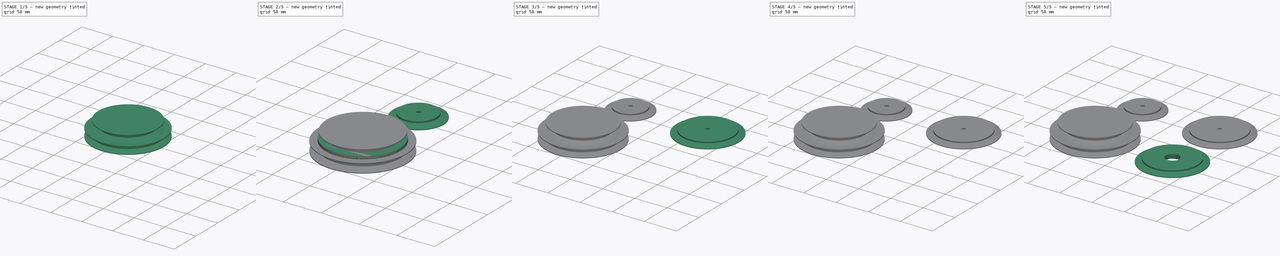
[diagram: build sequence overview — one tinted view per stage of 5, left to right]
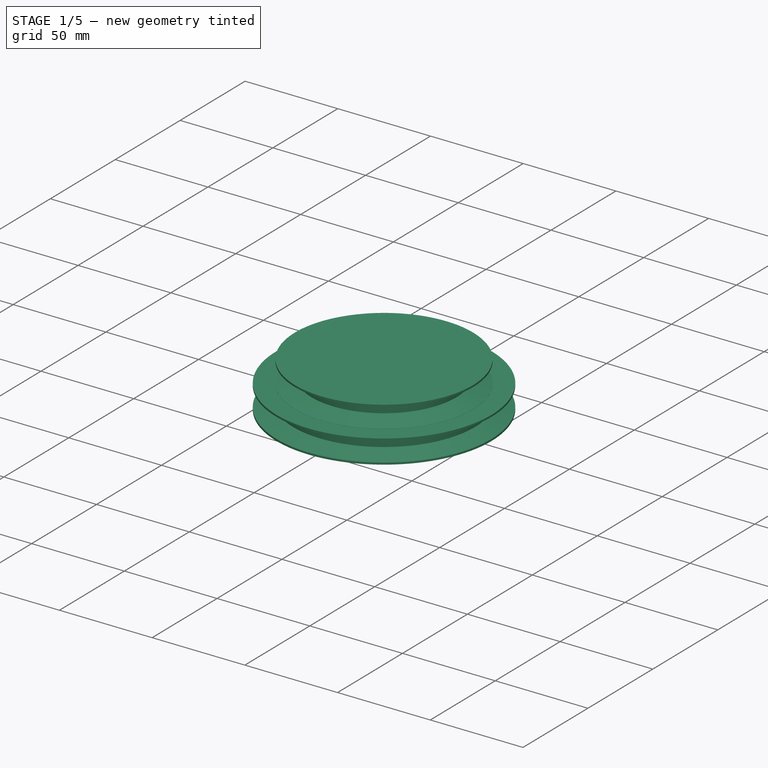
[diagram: stage 1 of 5 — iso view after this stage's code; geometry added in this stage tinted green]
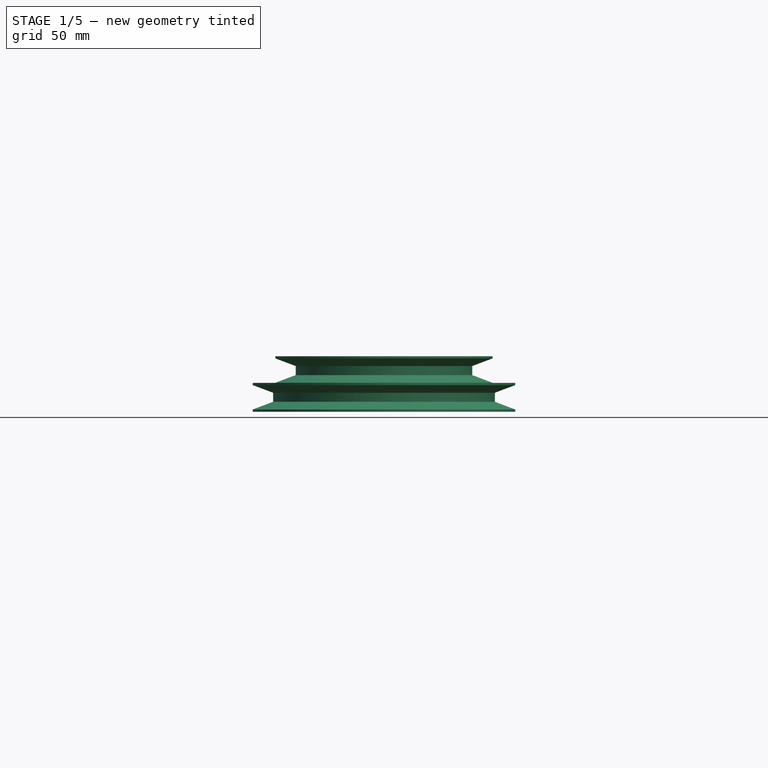
[diagram: stage 1 of 5 — front view after this stage's code; geometry added in this stage tinted green]
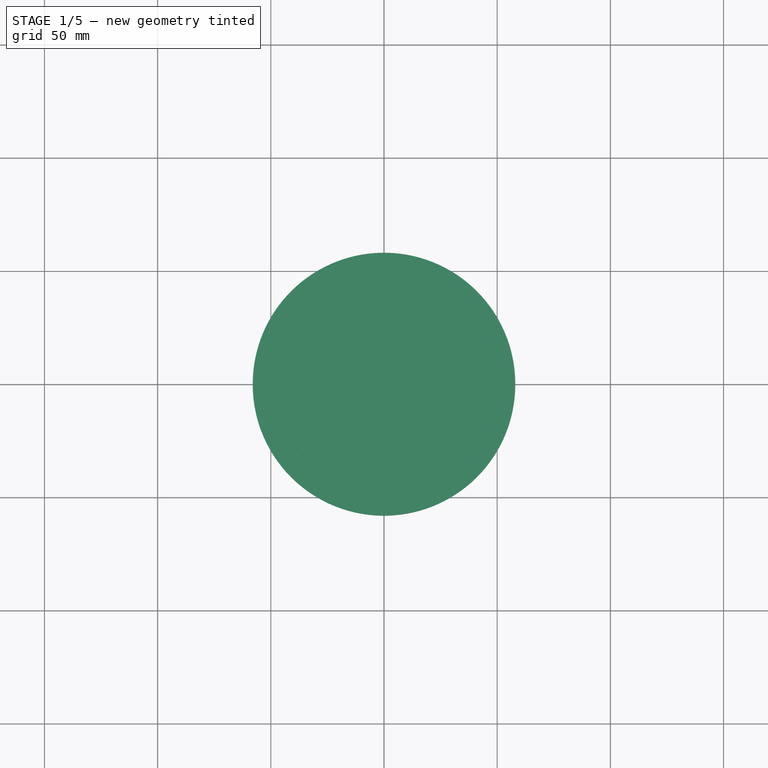
[diagram: stage 1 of 5 — top view after this stage's code; geometry added in this stage tinted green]
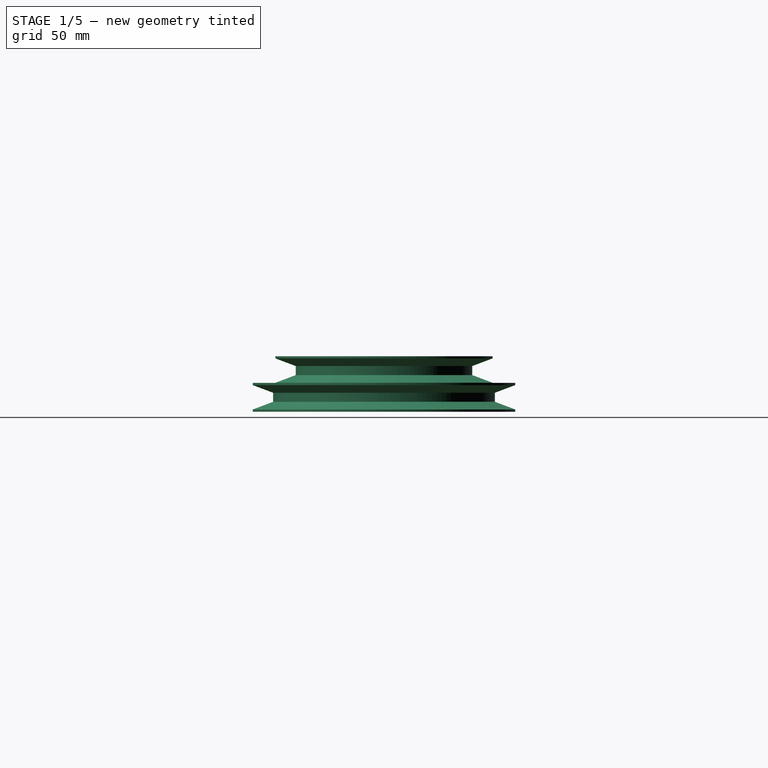
[diagram: stage 1 of 5 — right view after this stage's code; geometry added in this stage tinted green]
FCSTD DOCUMENT  (FreeCAD 0.17RUnknown)
Label: pulley
License: All rights reserved
LicenseURL: http://en.wikipedia.org/wiki/All_rights_reserved
objects: Part::Cylinder×12, Part::Cut×11, Sketcher::SketchObject×8, Part::Revolution×8, Part::Box×3, Part::MultiFuse×2, App::DocumentObjectGroup×1
note: 44 computed .brp shape members not serialized (recipe doc carries the construction recipe); baked Part::Feature solids carry a one-line shape summary decoded from their .brp

FEATURE [Sketcher::SketchObject] Sketch  label="r25mm"
  Placement = pos=(0,0,0) rot=(1,0,0;1.5708rad)
  sketch-geometry (8):
    g0: LineSegment StartX=-8 StartY=5.38155 StartZ=0 EndX=1 EndY=2 EndZ=0
    g1: LineSegment StartX=-8 StartY=-5.3979 StartZ=0 EndX=1 EndY=-2 EndZ=0
    g2: LineSegment StartX=1 StartY=-2 StartZ=0 EndX=1 EndY=2 EndZ=0
    g3: LineSegment StartX=-8 StartY=6.33661 StartZ=0 EndX=24.9919 EndY=6.33661 EndZ=0
    g4: LineSegment StartX=-8 StartY=-6.40963 StartZ=0 EndX=24.9919 EndY=-6.40963 EndZ=0
    g5: LineSegment StartX=24.9919 StartY=-6.40963 StartZ=0 EndX=24.9919 EndY=6.33661 EndZ=0
    g6: LineSegment StartX=-8 StartY=-5.3979 StartZ=0 EndX=-8 EndY=-6.40963 EndZ=0
    g7: LineSegment StartX=-8 StartY=5.38155 StartZ=0 EndX=-8 EndY=6.33661 EndZ=0
  constraints (13):
    c: Coincident(g2,g0)
    c: Vertical(g2)
    c: Horizontal(g3)
    c: Horizontal(g4)
    c: Coincident(g5,g4)
    c: Coincident(g5,g3)
    c: Vertical(g5)
    c: Coincident(g6,g1)
    c: Coincident(g6,g4)
    c: Vertical(g6)
    c: Coincident(g7,g0)
    c: Coincident(g7,g3)
    c: Vertical(g7)
FEATURE [Sketcher::SketchObject] Sketch001  label="r40mm"
  Placement = pos=(0,0,0) rot=(1,0,0;1.5708rad)
  sketch-geometry (8):
    g0: LineSegment StartX=-8 StartY=5.38155 StartZ=0 EndX=1 EndY=2 EndZ=0
    g1: LineSegment StartX=-8 StartY=-5.3979 StartZ=0 EndX=1 EndY=-2 EndZ=0
    g2: LineSegment StartX=1 StartY=-2 StartZ=0 EndX=1 EndY=2 EndZ=0
    g3: LineSegment StartX=-8 StartY=6.33661 StartZ=0 EndX=40 EndY=6.33661 EndZ=0
    g4: LineSegment StartX=-8 StartY=-6.40963 StartZ=0 EndX=40 EndY=-6.40963 EndZ=0
    g5: LineSegment StartX=40 StartY=-6.40963 StartZ=0 EndX=40 EndY=6.33661 EndZ=0
    g6: LineSegment StartX=-8 StartY=-5.3979 StartZ=0 EndX=-8 EndY=-6.40963 EndZ=0
    g7: LineSegment StartX=-8 StartY=5.38155 StartZ=0 EndX=-8 EndY=6.33661 EndZ=0
  constraints (13):
    c: Coincident(g2,g0)
    c: Vertical(g2)
    c: Horizontal(g3)
    c: Horizontal(g4)
    c: Coincident(g5,g4)
    c: Coincident(g5,g3)
    c: Vertical(g5)
    c: Coincident(g6,g1)
    c: Coincident(g6,g4)
    c: Vertical(g6)
    c: Coincident(g7,g0)
    c: Coincident(g7,g3)
    c: Vertical(g7)
FEATURE [Sketcher::SketchObject] Sketch002  label="r50mm"
  Placement = pos=(0,0,0) rot=(1,0,0;1.5708rad)
  sketch-geometry (8):
    g0: LineSegment StartX=-8 StartY=5.38155 StartZ=0 EndX=1 EndY=2 EndZ=0
    g1: LineSegment StartX=-8 StartY=-5.3979 StartZ=0 EndX=1 EndY=-2 EndZ=0
    g2: LineSegment StartX=1 StartY=-2 StartZ=0 EndX=1 EndY=2 EndZ=0
    g3: LineSegment StartX=-8 StartY=6.33661 StartZ=0 EndX=50 EndY=6.33661 EndZ=0
    g4: LineSegment StartX=-8 StartY=-6.40963 StartZ=0 EndX=50 EndY=-6.40963 EndZ=0
    g5: LineSegment StartX=50 StartY=-6.40963 StartZ=0 EndX=50 EndY=6.33661 EndZ=0
    g6: LineSegment StartX=-8 StartY=-5.3979 StartZ=0 EndX=-8 EndY=-6.40963 EndZ=0
    g7: LineSegment StartX=-8 StartY=5.38155 StartZ=0 EndX=-8 EndY=6.33661 EndZ=0
  constraints (13):
    c: Coincident(g2,g0)
    c: Vertical(g2)
    c: Horizontal(g3)
    c: Horizontal(g4)
    c: Coincident(g5,g4)
    c: Coincident(g5,g3)
    c: Vertical(g5)
    c: Coincident(g6,g1)
    c: Coincident(g6,g4)
    c: Vertical(g6)
    c: Coincident(g7,g0)
    c: Coincident(g7,g3)
    c: Vertical(g7)
FEATURE [Part::Revolution] Revolve
  Angle = 360
  Axis = (0,0,1)
  AxisLink = -> Sketch [Edge6]
  Base = (24.9919,0,6.33661)
  FaceMakerClass = Part::FaceMakerBullseye
  Placement = pos=(-25,0,11.8) rot=(0,0,1;0rad)
  Solid = true
  Source = -> Sketch
  Symmetric = false
FEATURE [Part::Revolution] Revolve002
  Angle = 360
  Axis = (0,0,1)
  AxisLink = -> Sketch001 [Edge6]
  Base = (40,0,6.33661)
  FaceMakerClass = Part::FaceMakerBullseye
  Placement = pos=(-40,0,11.8) rot=(0,0,1;0rad)
  Solid = true
  Source = -> Sketch001
  Symmetric = false
FEATURE [Sketcher::SketchObject] Sketch003  label="r40mm001"
  Placement = pos=(0,0,0) rot=(1,0,0;1.5708rad)
  sketch-geometry (8):
    g0: LineSegment StartX=-8 StartY=5.38155 StartZ=0 EndX=1 EndY=2 EndZ=0
    g1: LineSegment StartX=-8 StartY=-5.3979 StartZ=0 EndX=1 EndY=-2 EndZ=0
    g2: LineSegment StartX=1 StartY=-2 StartZ=0 EndX=1 EndY=2 EndZ=0
    g3: LineSegment StartX=-8 StartY=6.33661 StartZ=0 EndX=40 EndY=6.33661 EndZ=0
    g4: LineSegment StartX=-8 StartY=-6.40963 StartZ=0 EndX=40 EndY=-6.40963 EndZ=0
    g5: LineSegment StartX=40 StartY=-6.40963 StartZ=0 EndX=40 EndY=6.33661 EndZ=0
    g6: LineSegment StartX=-8 StartY=-5.3979 StartZ=0 EndX=-8 EndY=-6.40963 EndZ=0
    g7: LineSegment StartX=-8 StartY=5.38155 StartZ=0 EndX=-8 EndY=6.33661 EndZ=0
  constraints (13):
    c: Coincident(g2,g0)
    c: Vertical(g2)
    c: Horizontal(g3)
    c: Horizontal(g4)
    c: Coincident(g5,g4)
    c: Coincident(g5,g3)
    c: Vertical(g5)
    c: Coincident(g6,g1)
    c: Coincident(g6,g4)
    c: Vertical(g6)
    c: Coincident(g7,g0)
    c: Coincident(g7,g3)
    c: Vertical(g7)
FEATURE [Part::Revolution] Revolve003
  Angle = 360
  Axis = (0,0,1)
  AxisLink = -> Sketch003 [Edge6]
  Base = (40,0,6.33661)
  FaceMakerClass = Part::FaceMakerBullseye
  Placement = pos=(-40,0,0) rot=(0,0,1;0rad)
  Solid = true
  Source = -> Sketch003
  Symmetric = false
FEATURE [Part::Revolution] Revolve004
  Angle = 360
  Axis = (0,0,1)
  AxisLink = -> Sketch002 [Edge6]
  Base = (50,0,6.33661)
  FaceMakerClass = Part::FaceMakerBullseye
  Placement = pos=(-50,0,0) rot=(0,0,1;0rad)
  Solid = true
  Source = -> Sketch002
  Symmetric = false
FEATURE [Sketcher::SketchObject] Sketch007  label="r25mm001"
  Placement = pos=(0,0,0) rot=(1,0,0;1.5708rad)
  sketch-geometry (8):
    g0: LineSegment StartX=-8 StartY=5.38155 StartZ=0 EndX=1 EndY=2 EndZ=0
    g1: LineSegment StartX=-8 StartY=-5.3979 StartZ=0 EndX=1 EndY=-2 EndZ=0
    g2: LineSegment StartX=1 StartY=-2 StartZ=0 EndX=1 EndY=2 EndZ=0
    g3: LineSegment StartX=-8 StartY=6.33661 StartZ=0 EndX=24.9919 EndY=6.33661 EndZ=0
    g4: LineSegment StartX=-8 StartY=-6.40963 StartZ=0 EndX=24.9919 EndY=-6.40963 EndZ=0
    g5: LineSegment StartX=24.9919 StartY=-6.40963 StartZ=0 EndX=24.9919 EndY=6.33661 EndZ=0
    g6: LineSegment StartX=-8 StartY=-5.3979 StartZ=0 EndX=-8 EndY=-6.40963 EndZ=0
    g7: LineSegment StartX=-8 StartY=5.38155 StartZ=0 EndX=-8 EndY=6.33661 EndZ=0
  constraints (13):
    c: Coincident(g2,g0)
    c: Vertical(g2)
    c: Horizontal(g3)
    c: Horizontal(g4)
    c: Coincident(g5,g4)
    c: Coincident(g5,g3)
    c: Vertical(g5)
    c: Coincident(g6,g1)
    c: Coincident(g6,g4)
    c: Vertical(g6)
    c: Coincident(g7,g0)
    c: Coincident(g7,g3)
    c: Vertical(g7)
FEATURE [Part::Revolution] Revolve009
  Angle = 360
  Axis = (0,0,1)
  AxisLink = -> Sketch007 [Edge6]
  Base = (24.9919,0,6.33661)
  FaceMakerClass = Part::FaceMakerBullseye
  Placement = pos=(-25,0,0) rot=(0,0,1;0rad)
  Solid = true
  Source = -> Sketch007
  Symmetric = false
FEATURE [Part::Cylinder] Cylinder011  label="Zylinder011"
  Angle = 360
  AttacherType = Attacher::AttachEngine3D
  Height = 10
  Placement = pos=(0,0,0.2) rot=(0,0,1;0rad)
  Radius = 35
FEATURE [Part::Cut] Cut010
  Base = -> Revolve009
  Tool = -> Cylinder011
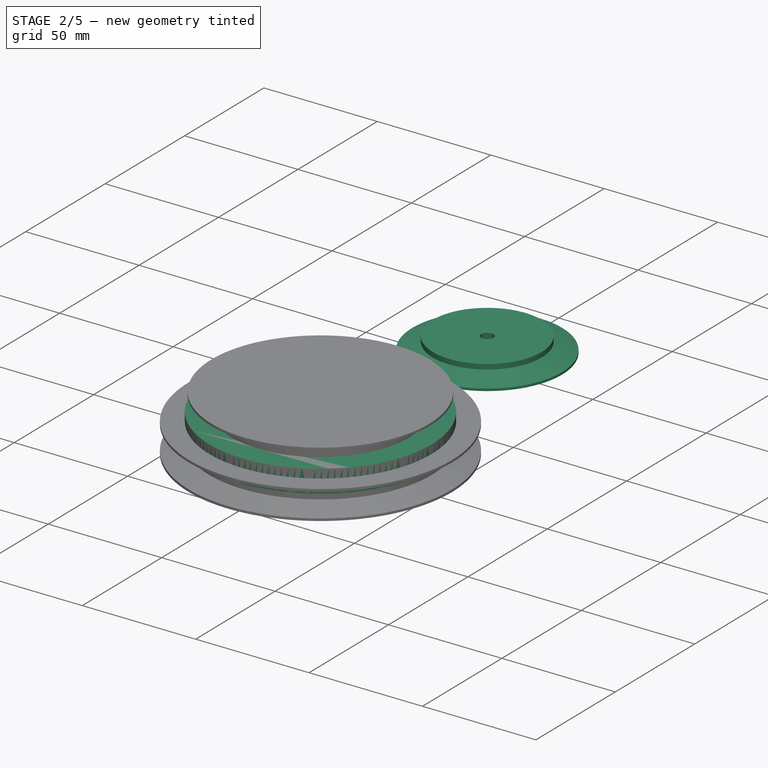
[diagram: stage 2 of 5 — iso view after this stage's code; geometry added in this stage tinted green]
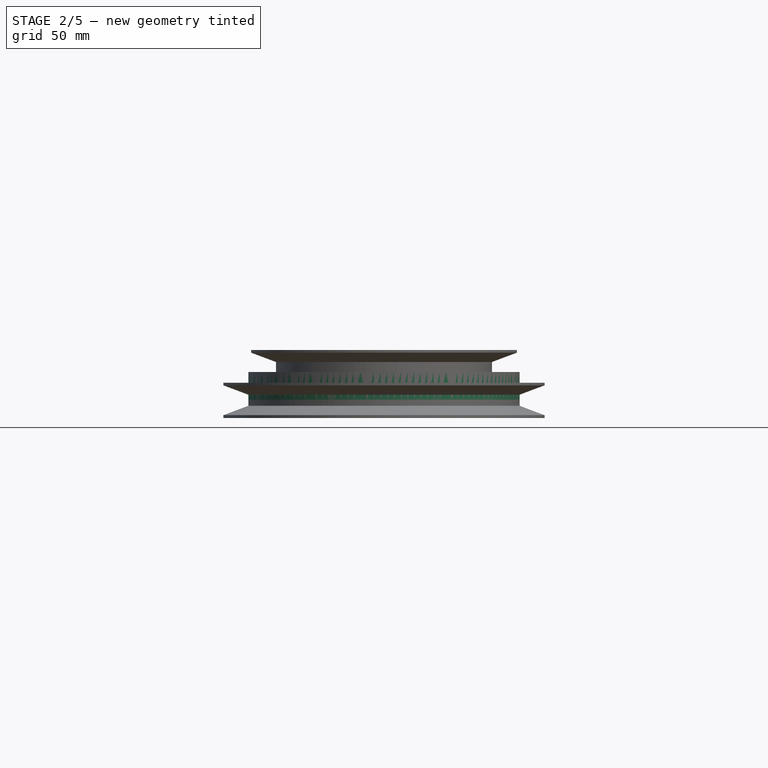
[diagram: stage 2 of 5 — front view after this stage's code; geometry added in this stage tinted green]
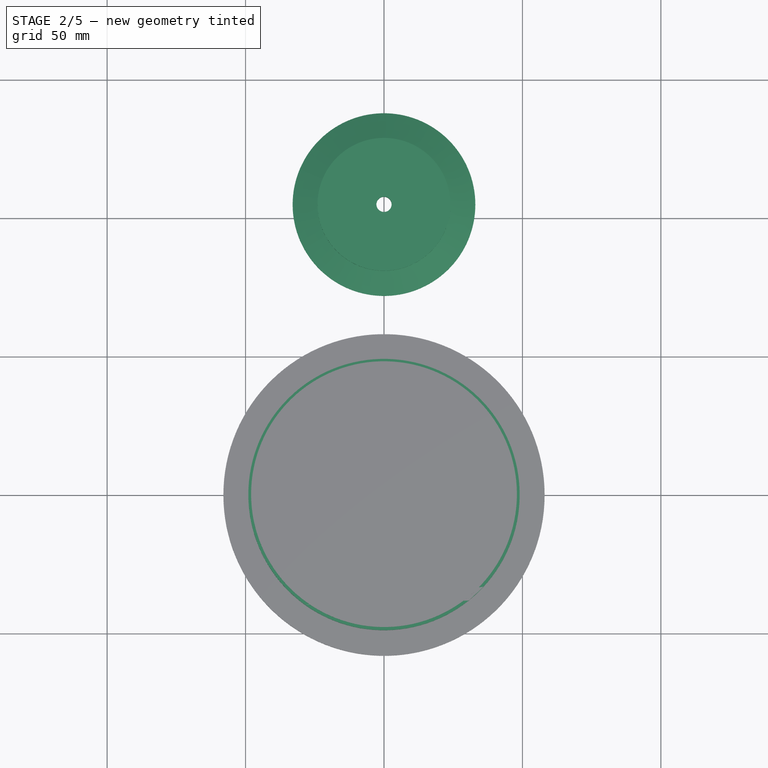
[diagram: stage 2 of 5 — top view after this stage's code; geometry added in this stage tinted green]
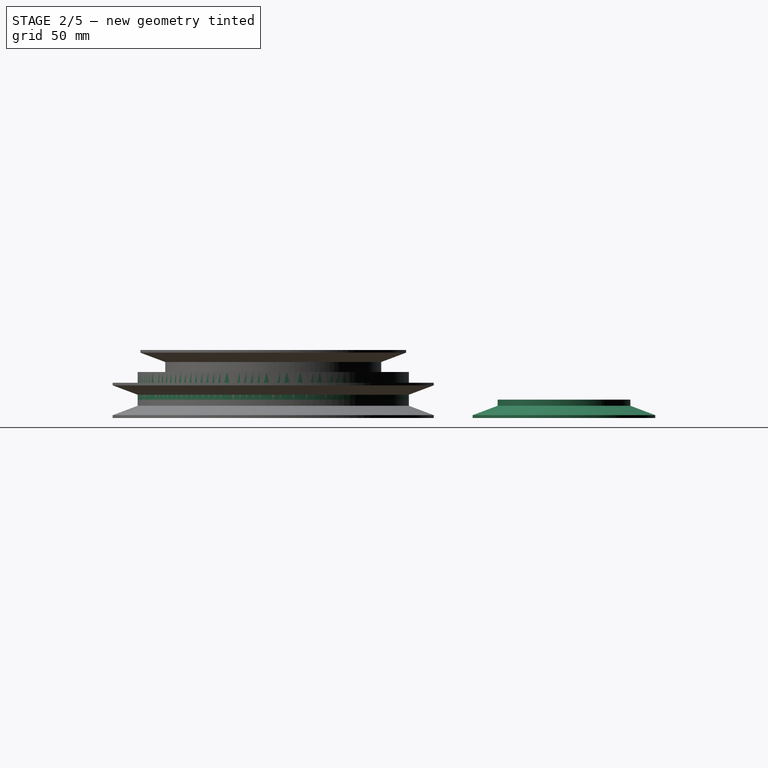
[diagram: stage 2 of 5 — right view after this stage's code; geometry added in this stage tinted green]
FEATURE [Sketcher::SketchObject] Sketch006  label="r40mm003"
  Placement = pos=(0,0,0) rot=(1,0,0;1.5708rad)
  sketch-geometry (8):
    g0: LineSegment StartX=-8 StartY=5.38155 StartZ=0 EndX=1 EndY=2 EndZ=0
    g1: LineSegment StartX=-8 StartY=-5.3979 StartZ=0 EndX=1 EndY=-2 EndZ=0
    g2: LineSegment StartX=1 StartY=-2 StartZ=0 EndX=1 EndY=2 EndZ=0
    g3: LineSegment StartX=-8 StartY=6.33661 StartZ=0 EndX=40 EndY=6.33661 EndZ=0
    g4: LineSegment StartX=-8 StartY=-6.40963 StartZ=0 EndX=40 EndY=-6.40963 EndZ=0
    g5: LineSegment StartX=40 StartY=-6.40963 StartZ=0 EndX=40 EndY=6.33661 EndZ=0
    g6: LineSegment StartX=-8 StartY=-5.3979 StartZ=0 EndX=-8 EndY=-6.40963 EndZ=0
    g7: LineSegment StartX=-8 StartY=5.38155 StartZ=0 EndX=-8 EndY=6.33661 EndZ=0
  constraints (13):
    c: Coincident(g2,g0)
    c: Vertical(g2)
    c: Horizontal(g3)
    c: Horizontal(g4)
    c: Coincident(g5,g4)
    c: Coincident(g5,g3)
    c: Vertical(g5)
    c: Coincident(g6,g1)
    c: Coincident(g6,g4)
    c: Vertical(g6)
    c: Coincident(g7,g0)
    c: Coincident(g7,g3)
    c: Vertical(g7)
FEATURE [Part::Revolution] Revolve008
  Angle = 360
  Axis = (0,0,1)
  AxisLink = -> Sketch006 [Edge6]
  Base = (40,0,6.33661)
  FaceMakerClass = Part::FaceMakerBullseye
  Placement = pos=(-40,0,0) rot=(0,0,1;0rad)
  Solid = true
  Source = -> Sketch006
  Symmetric = false
FEATURE [Part::Cylinder] Cylinder008  label="Zylinder008"
  Angle = 360
  AttacherType = Attacher::AttachEngine3D
  Height = 10
  Placement = pos=(0,0,0.2) rot=(0,0,1;0rad)
  Radius = 49
FEATURE [Part::Cylinder] Cylinder009  label="Zylinder009"
  Angle = 360
  AttacherType = Attacher::AttachEngine3D
  Height = 20
  Placement = pos=(0,0,-10) rot=(0,0,1;0rad)
  Radius = 2.75
FEATURE [Part::Cylinder] Cylinder010  label="Zylinder010"
  Angle = 360
  AttacherType = Attacher::AttachEngine3D
  Height = 2
  Placement = pos=(0,0,0.2) rot=(0,0,1;0rad)
  Radius = 32.5
FEATURE [Part::Cut] Cut009  label="Dist_25mm"
  Base = -> Cylinder010
  Tool = -> Cylinder009
FEATURE [Part::Cylinder] Cylinder012  label="Zylinder012"
  Angle = 360
  AttacherType = Attacher::AttachEngine3D
  Height = 10
  Placement = pos=(0,0,-7.8) rot=(0,0,1;0rad)
  Radius = 2.75
FEATURE [Part::Cut] Cut011  label="25mm_half"
  Base = -> Cut010
  Placement = pos=(0,105,0) rot=(0,0,1;0rad)
  Tool = -> Cylinder012
FEATURE [App::DocumentObjectGroup] Gruppe
  Group = -> [Revolve,Revolve003,Revolve002,Revolve004]
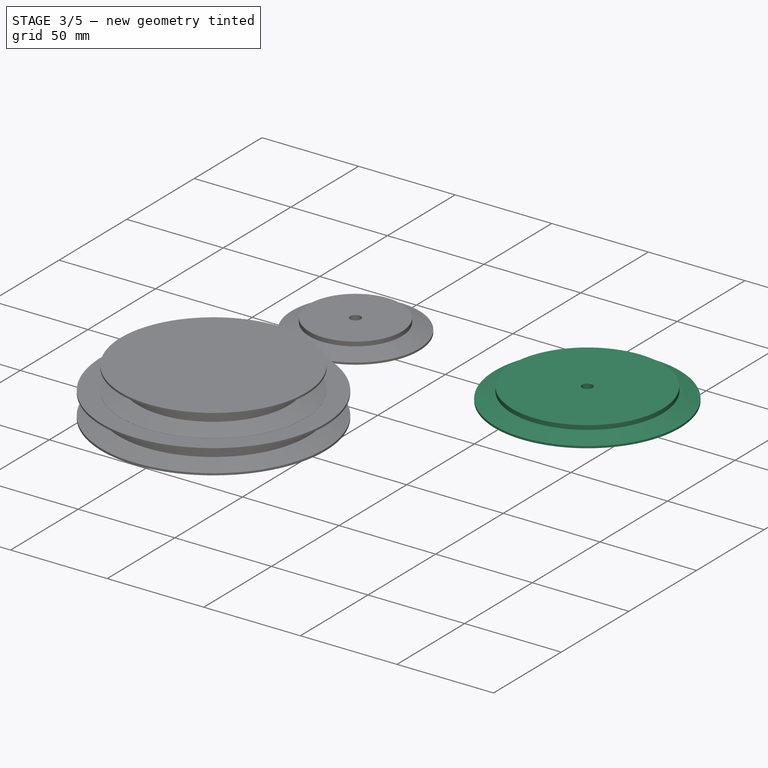
[diagram: stage 3 of 5 — iso view after this stage's code; geometry added in this stage tinted green]
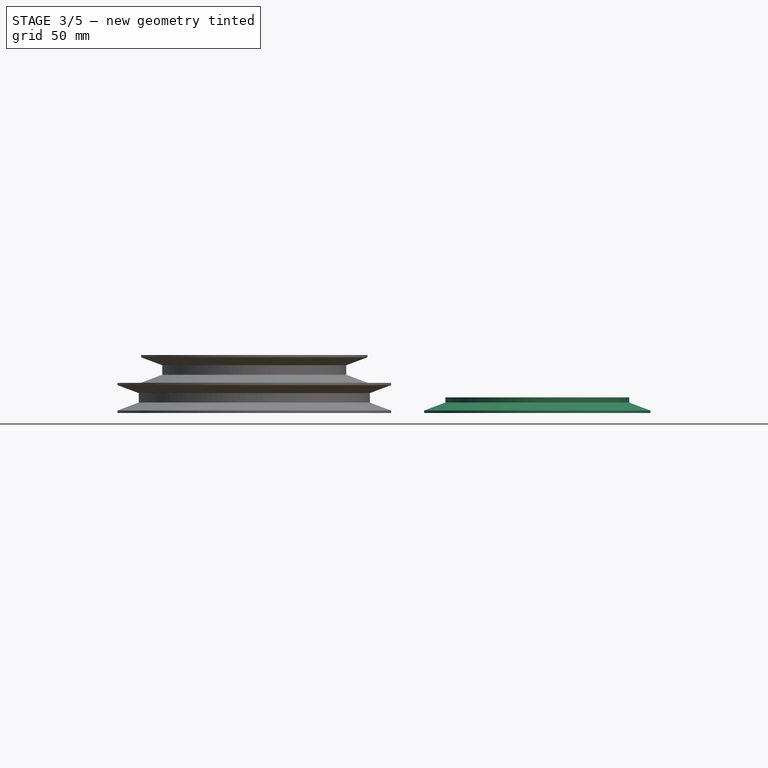
[diagram: stage 3 of 5 — front view after this stage's code; geometry added in this stage tinted green]
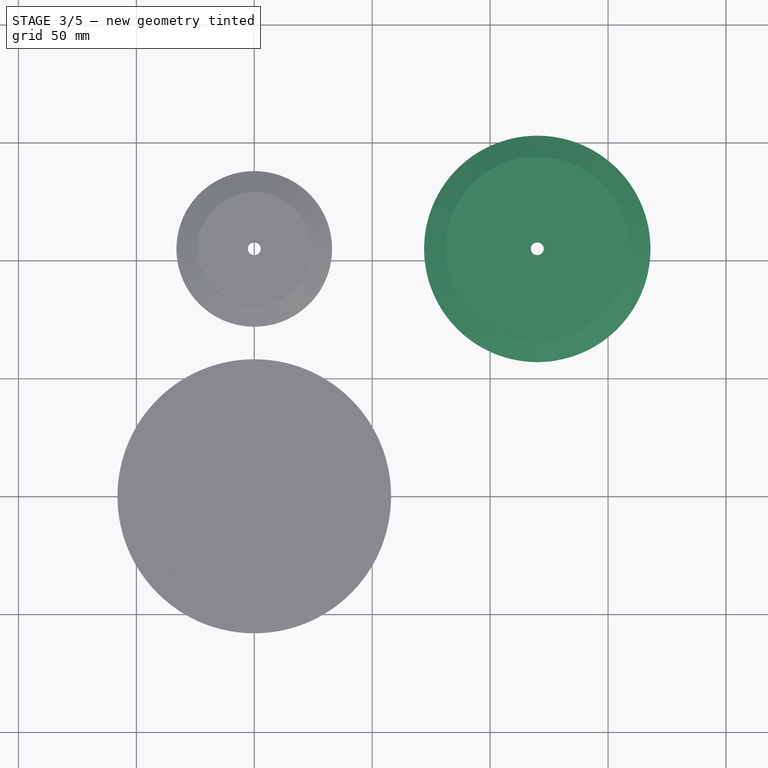
[diagram: stage 3 of 5 — top view after this stage's code; geometry added in this stage tinted green]
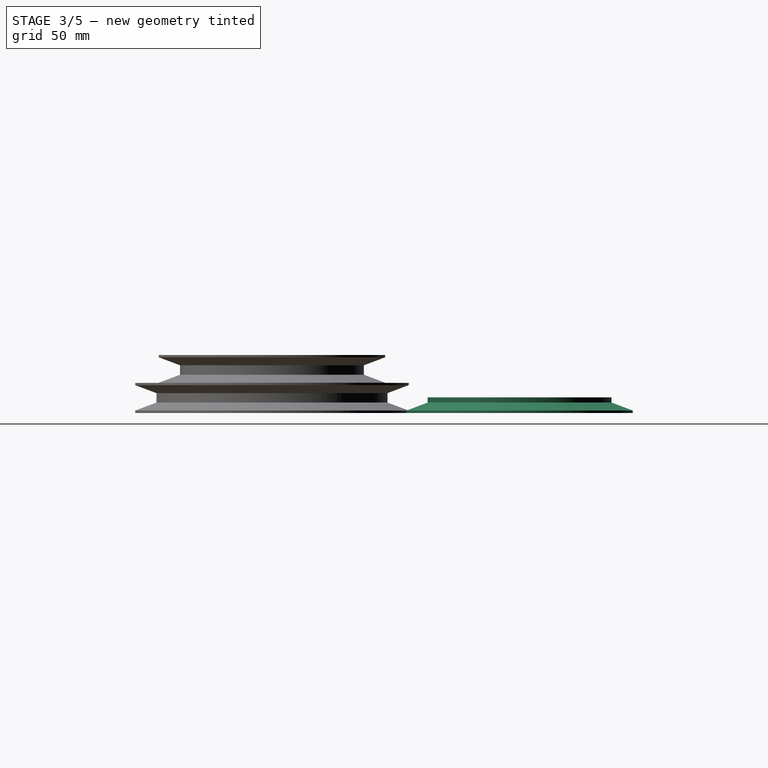
[diagram: stage 3 of 5 — right view after this stage's code; geometry added in this stage tinted green]
FEATURE [Part::Cylinder] Cylinder005  label="Zylinder005"
  Angle = 360
  AttacherType = Attacher::AttachEngine3D
  Height = 20
  Placement = pos=(0,0,-10) rot=(0,0,1;0rad)
  Radius = 10
FEATURE [Part::Box] Box002  label="Würfel002"
  AttacherType = Attacher::AttachEngine3D
  Height = 20
  Length = 2
  Placement = pos=(0,0,-10) rot=(0,0,1;0rad)
  Width = 12
FEATURE [Part::Cylinder] Cylinder006  label="Zylinder006"
  Angle = 360
  AttacherType = Attacher::AttachEngine3D
  Height = 2
  Placement = pos=(0,0,0.2) rot=(0,0,1;0rad)
  Radius = 48.5
FEATURE [Part::MultiFuse] Fusion003
  Shapes = -> [Cylinder005,Box002]
FEATURE [Part::Cut] Cut006  label="Dist_40mm"
  Base = -> Cylinder006
  Tool = -> Fusion003
FEATURE [Part::Cylinder] Cylinder007  label="Zylinder007"
  Angle = 360
  AttacherType = Attacher::AttachEngine3D
  Height = 20
  Placement = pos=(0,0,-10) rot=(0,0,1;0rad)
  Radius = 2.75
FEATURE [Part::Cut] Cut007
  Base = -> Revolve008
  Tool = -> Cylinder008
FEATURE [Part::Cut] Cut008  label="40mm_half_2"
  Base = -> Cut007
  Placement = pos=(120,105,0) rot=(0,0,1;0rad)
  Tool = -> Cylinder007
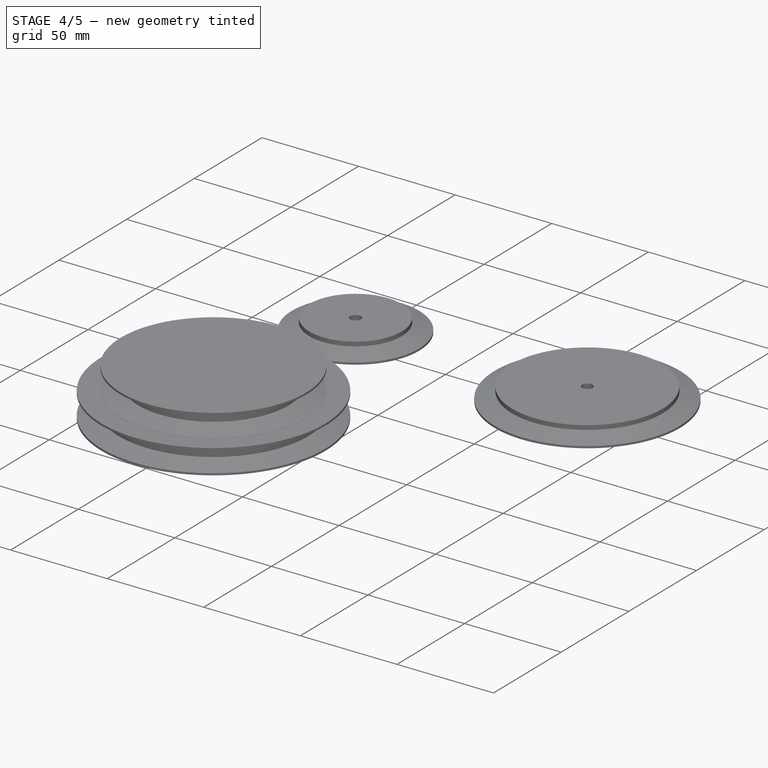
[diagram: stage 4 of 5 — iso view after this stage's code; geometry added in this stage tinted green]
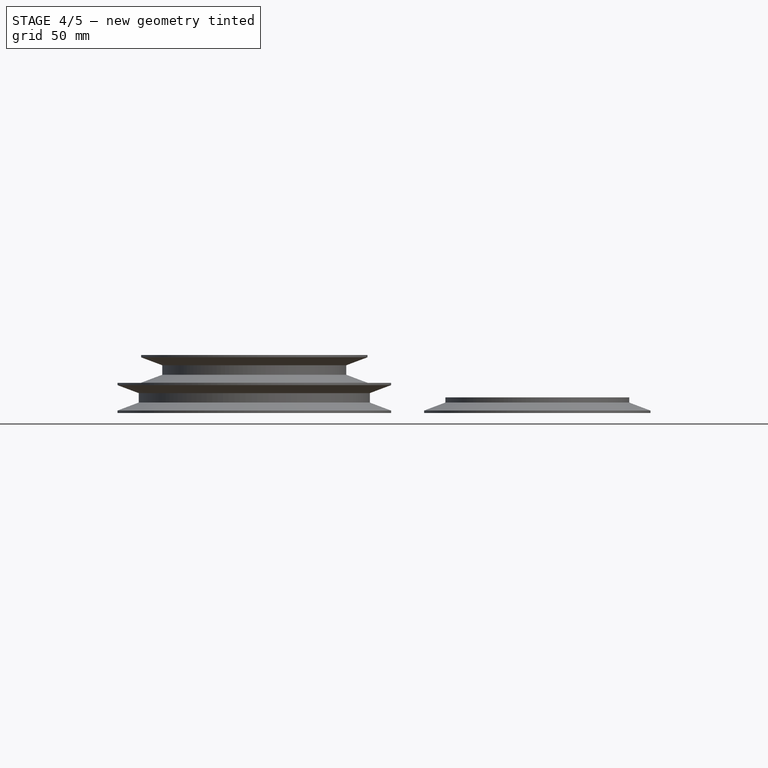
[diagram: stage 4 of 5 — front view after this stage's code; geometry added in this stage tinted green]
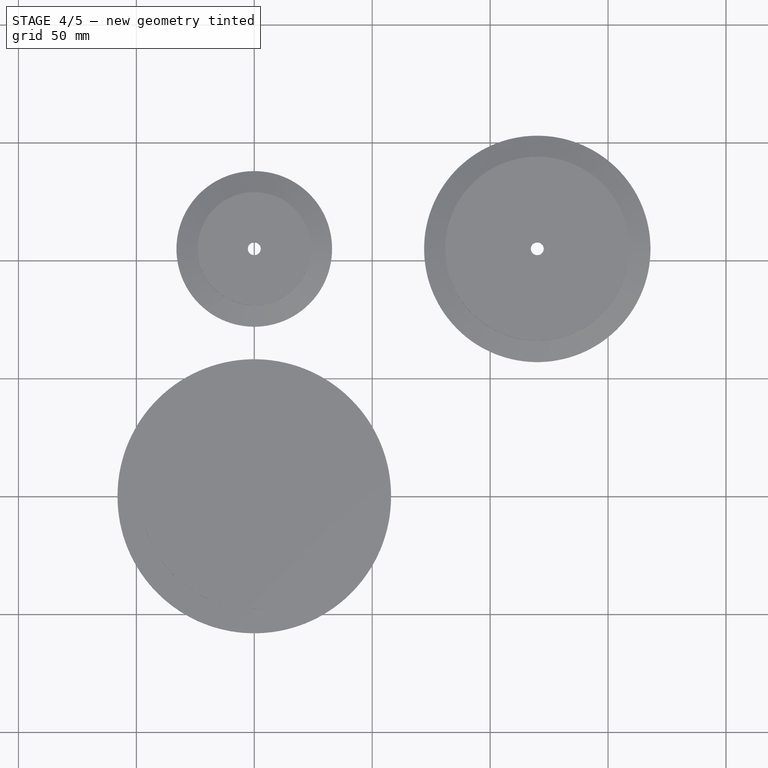
[diagram: stage 4 of 5 — top view after this stage's code; geometry added in this stage tinted green]
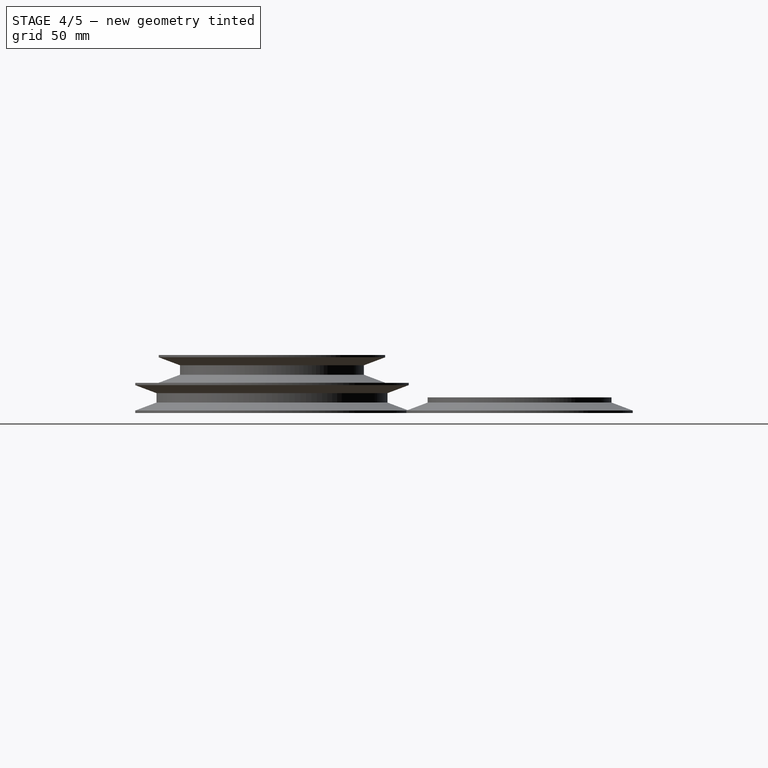
[diagram: stage 4 of 5 — right view after this stage's code; geometry added in this stage tinted green]
FEATURE [Sketcher::SketchObject] Sketch005  label="r50mm001"
  Placement = pos=(0,0,0) rot=(1,0,0;1.5708rad)
  sketch-geometry (8):
    g0: LineSegment StartX=-8 StartY=5.38155 StartZ=0 EndX=1 EndY=2 EndZ=0
    g1: LineSegment StartX=-8 StartY=-5.3979 StartZ=0 EndX=1 EndY=-2 EndZ=0
    g2: LineSegment StartX=1 StartY=-2 StartZ=0 EndX=1 EndY=2 EndZ=0
    g3: LineSegment StartX=-8 StartY=6.33661 StartZ=0 EndX=50 EndY=6.33661 EndZ=0
    g4: LineSegment StartX=-8 StartY=-6.40963 StartZ=0 EndX=50 EndY=-6.40963 EndZ=0
    g5: LineSegment StartX=50 StartY=-6.40963 StartZ=0 EndX=50 EndY=6.33661 EndZ=0
    g6: LineSegment StartX=-8 StartY=-5.3979 StartZ=0 EndX=-8 EndY=-6.40963 EndZ=0
    g7: LineSegment StartX=-8 StartY=5.38155 StartZ=0 EndX=-8 EndY=6.33661 EndZ=0
  constraints (13):
    c: Coincident(g2,g0)
    c: Vertical(g2)
    c: Horizontal(g3)
    c: Horizontal(g4)
    c: Coincident(g5,g4)
    c: Coincident(g5,g3)
    c: Vertical(g5)
    c: Coincident(g6,g1)
    c: Coincident(g6,g4)
    c: Vertical(g6)
    c: Coincident(g7,g0)
    c: Coincident(g7,g3)
    c: Vertical(g7)
FEATURE [Part::Revolution] Revolve007
  Angle = 360
  Axis = (0,0,1)
  AxisLink = -> Sketch005 [Edge6]
  Base = (50,0,6.33661)
  FaceMakerClass = Part::FaceMakerBullseye
  Placement = pos=(-50,0,0) rot=(0,0,1;0rad)
  Solid = true
  Source = -> Sketch005
  Symmetric = false
FEATURE [Part::Cylinder] Cylinder003  label="Zylinder003"
  Angle = 360
  AttacherType = Attacher::AttachEngine3D
  Height = 10
  Placement = pos=(0,0,0.2) rot=(0,0,1;0rad)
  Radius = 59
FEATURE [Part::Cylinder] Cylinder004  label="Zylinder004"
  Angle = 360
  AttacherType = Attacher::AttachEngine3D
  Height = 20
  Placement = pos=(0,0,-10) rot=(0,0,1;0rad)
  Radius = 10
FEATURE [Part::Box] Box001  label="Würfel001"
  AttacherType = Attacher::AttachEngine3D
  Height = 20
  Length = 2
  Placement = pos=(0,0,-10) rot=(0,0,1;0rad)
  Width = 12
FEATURE [Part::MultiFuse] Fusion002
  Shapes = -> [Box001,Cylinder004]
FEATURE [Part::Cut] Cut004
  Base = -> Revolve007
  Tool = -> Fusion002
FEATURE [Part::Cut] Cut005  label="50mm_half"
  Base = -> Cut004
  Tool = -> Cylinder003
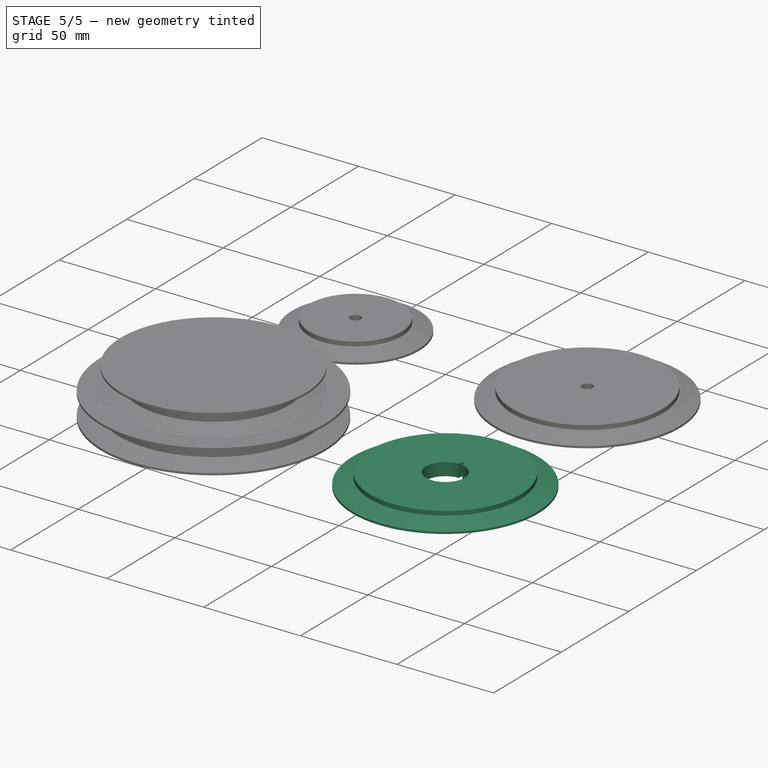
[diagram: stage 5 of 5 — iso view after this stage's code; geometry added in this stage tinted green]
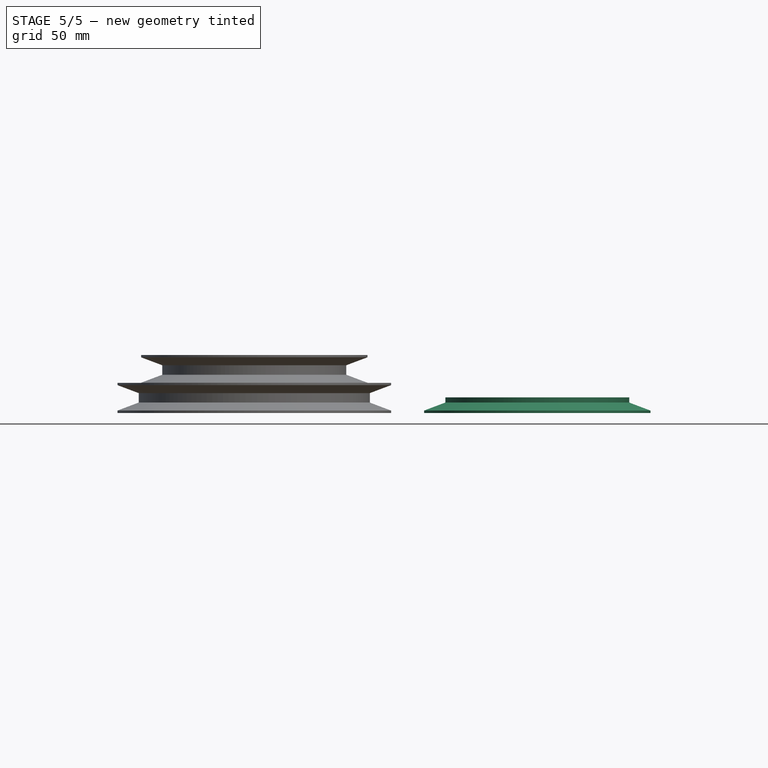
[diagram: stage 5 of 5 — front view after this stage's code; geometry added in this stage tinted green]
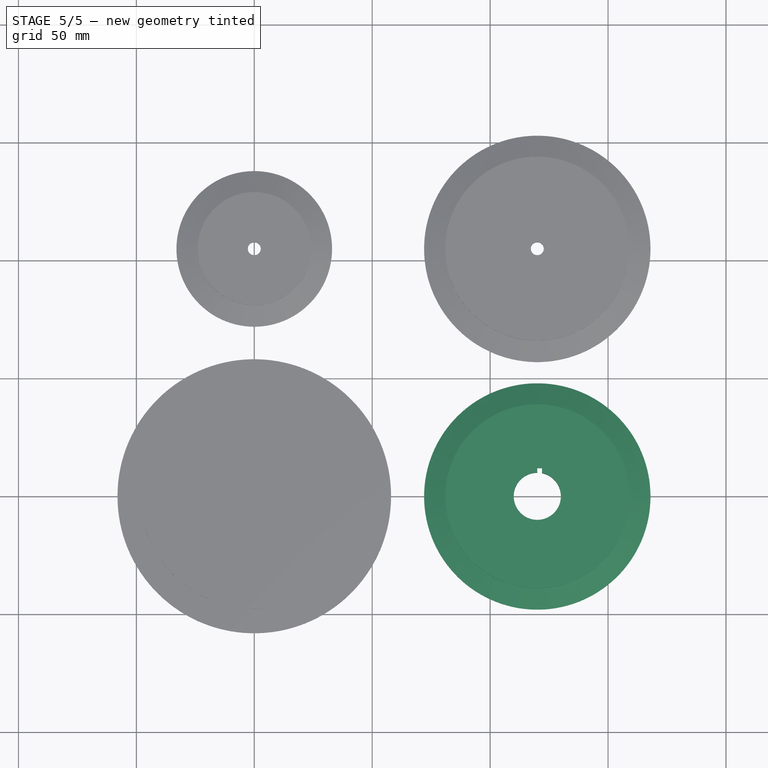
[diagram: stage 5 of 5 — top view after this stage's code; geometry added in this stage tinted green]
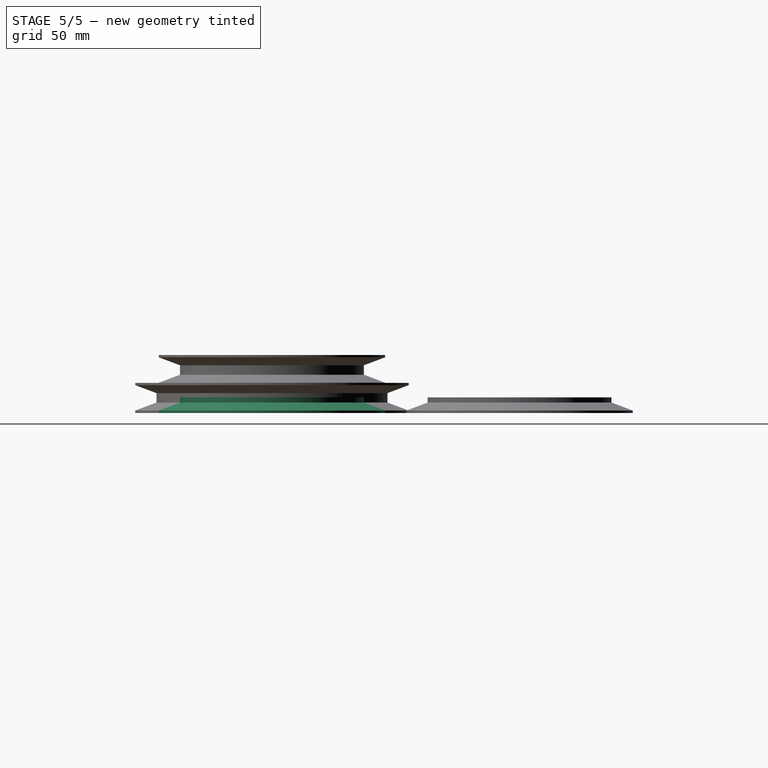
[diagram: stage 5 of 5 — right view after this stage's code; geometry added in this stage tinted green]
FEATURE [Sketcher::SketchObject] Sketch004  label="r40mm002"
  Placement = pos=(0,0,0) rot=(1,0,0;1.5708rad)
  sketch-geometry (8):
    g0: LineSegment StartX=-8 StartY=5.38155 StartZ=0 EndX=1 EndY=2 EndZ=0
    g1: LineSegment StartX=-8 StartY=-5.3979 StartZ=0 EndX=1 EndY=-2 EndZ=0
    g2: LineSegment StartX=1 StartY=-2 StartZ=0 EndX=1 EndY=2 EndZ=0
    g3: LineSegment StartX=-8 StartY=6.33661 StartZ=0 EndX=40 EndY=6.33661 EndZ=0
    g4: LineSegment StartX=-8 StartY=-6.40963 StartZ=0 EndX=40 EndY=-6.40963 EndZ=0
    g5: LineSegment StartX=40 StartY=-6.40963 StartZ=0 EndX=40 EndY=6.33661 EndZ=0
    g6: LineSegment StartX=-8 StartY=-5.3979 StartZ=0 EndX=-8 EndY=-6.40963 EndZ=0
    g7: LineSegment StartX=-8 StartY=5.38155 StartZ=0 EndX=-8 EndY=6.33661 EndZ=0
  constraints (13):
    c: Coincident(g2,g0)
    c: Vertical(g2)
    c: Horizontal(g3)
    c: Horizontal(g4)
    c: Coincident(g5,g4)
    c: Coincident(g5,g3)
    c: Vertical(g5)
    c: Coincident(g6,g1)
    c: Coincident(g6,g4)
    c: Vertical(g6)
    c: Coincident(g7,g0)
    c: Coincident(g7,g3)
    c: Vertical(g7)
FEATURE [Part::Revolution] Revolve006
  Angle = 360
  Axis = (0,0,1)
  AxisLink = -> Sketch004 [Edge6]
  Base = (40,0,6.33661)
  FaceMakerClass = Part::FaceMakerBullseye
  Placement = pos=(-40,0,0) rot=(0,0,1;0rad)
  Solid = true
  Source = -> Sketch004
  Symmetric = false
FEATURE [Part::Cylinder] Cylinder001  label="Zylinder001"
  Angle = 360
  AttacherType = Attacher::AttachEngine3D
  Height = 20
  Placement = pos=(0,0,-10) rot=(0,0,1;0rad)
  Radius = 10
FEATURE [Part::Cut] Cut001
  Base = -> Revolve006
  Tool = -> Cylinder001
FEATURE [Part::Box] Box  label="Würfel"
  AttacherType = Attacher::AttachEngine3D
  Height = 20
  Length = 2
  Placement = pos=(0,0,-10) rot=(0,0,1;0rad)
  Width = 12
FEATURE [Part::Cut] Cut002
  Base = -> Cut001
  Tool = -> Box
FEATURE [Part::Cylinder] Cylinder002  label="Zylinder002"
  Angle = 360
  AttacherType = Attacher::AttachEngine3D
  Height = 10
  Placement = pos=(0,0,0.2) rot=(0,0,1;0rad)
  Radius = 49
FEATURE [Part::Cut] Cut003  label="40mm_half_1"
  Base = -> Cut002
  Placement = pos=(120,0,0) rot=(0,0,1;0rad)
  Tool = -> Cylinder002
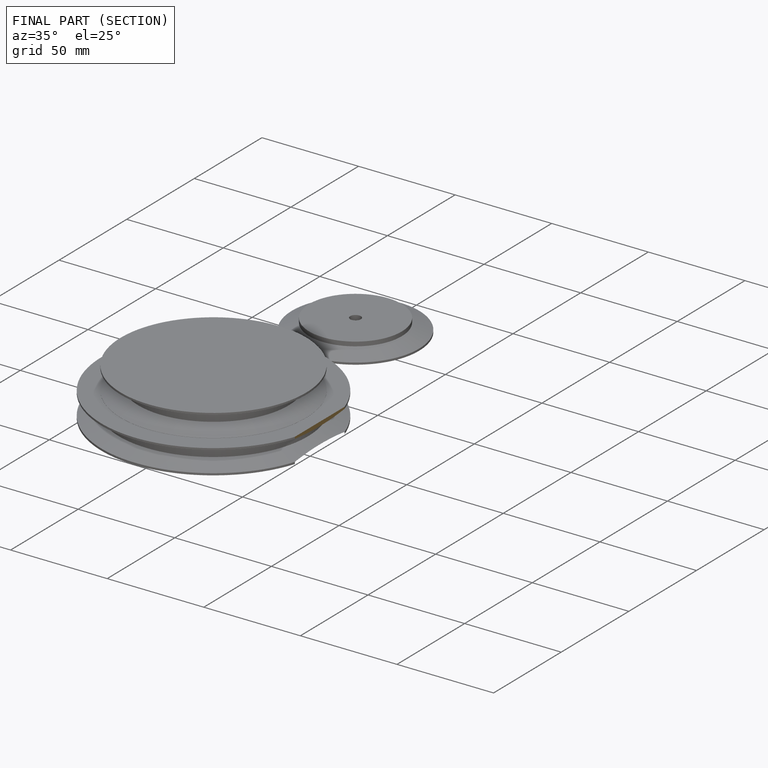
[diagram: finished part — half-section view (interior)]
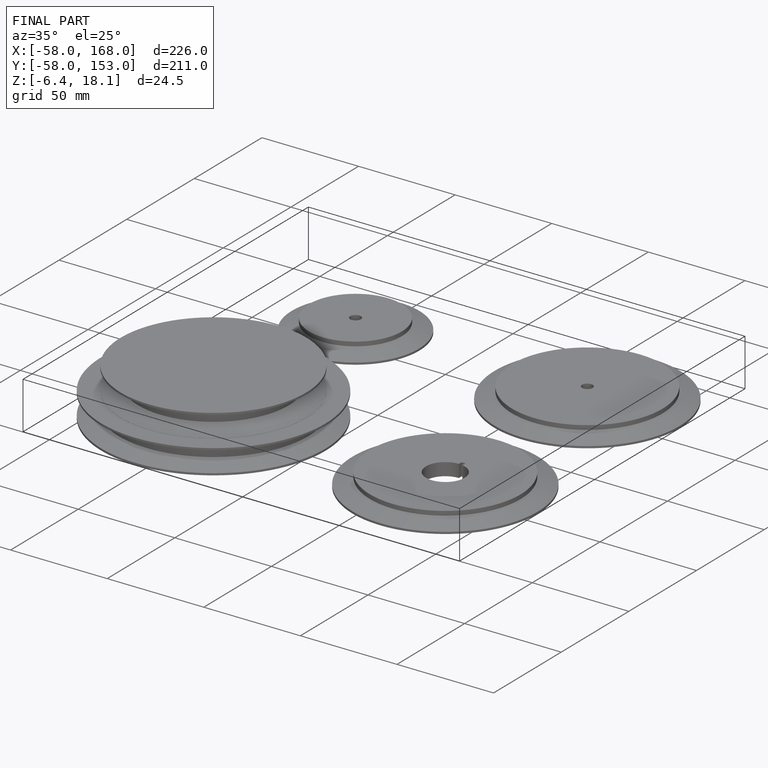
[diagram: finished part — iso view with bounding-box wireframe]
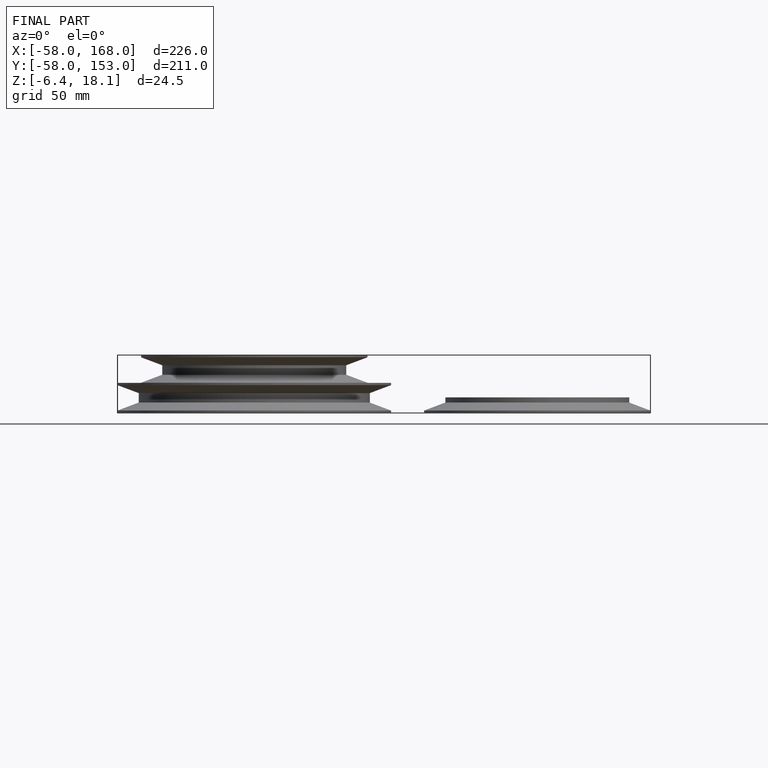
[diagram: finished part — front view with bounding-box wireframe]
